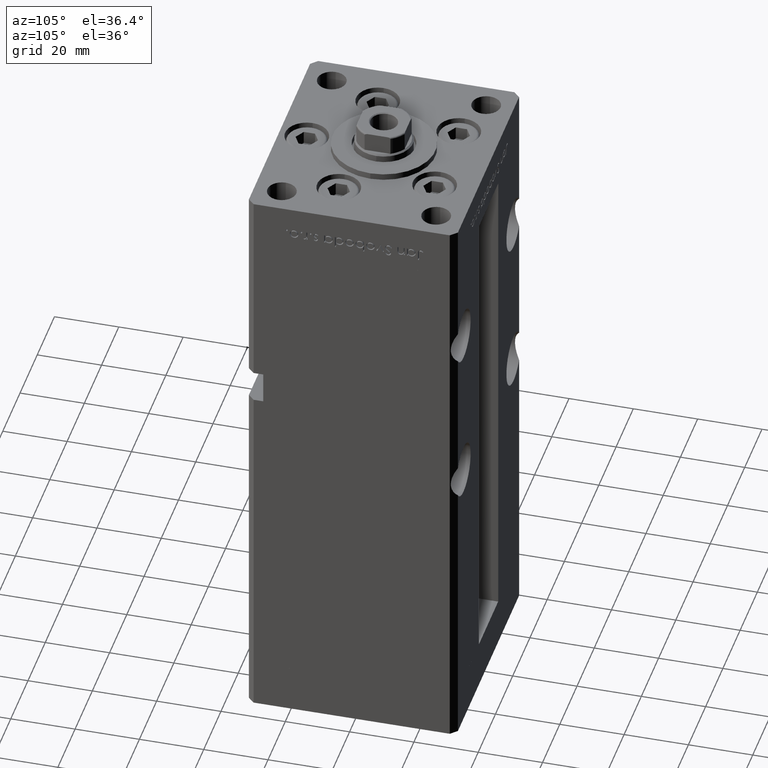
[diagram: clean part render]
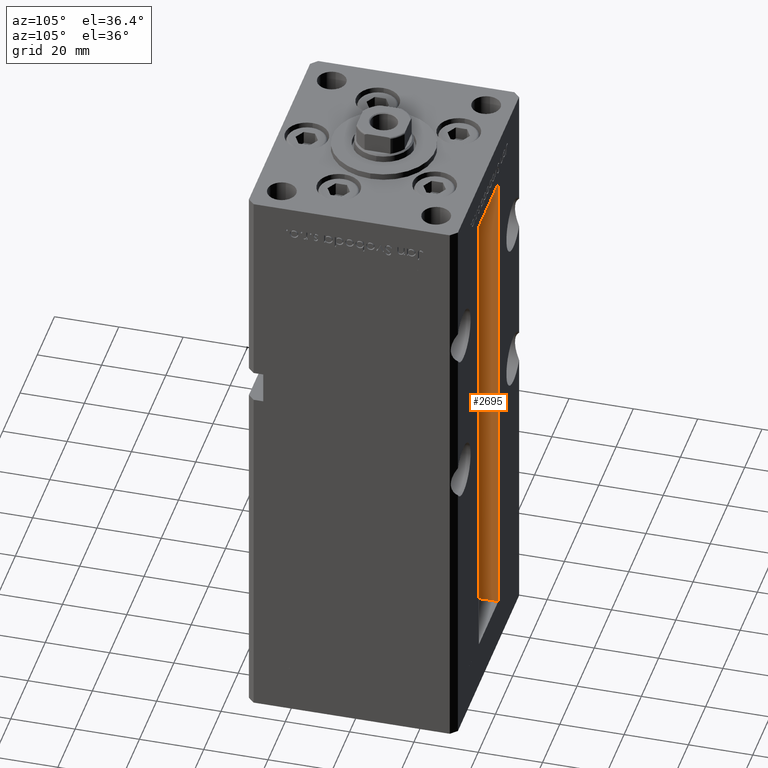
[diagram: same view with one face highlighted and labeled with its STEP entity id]
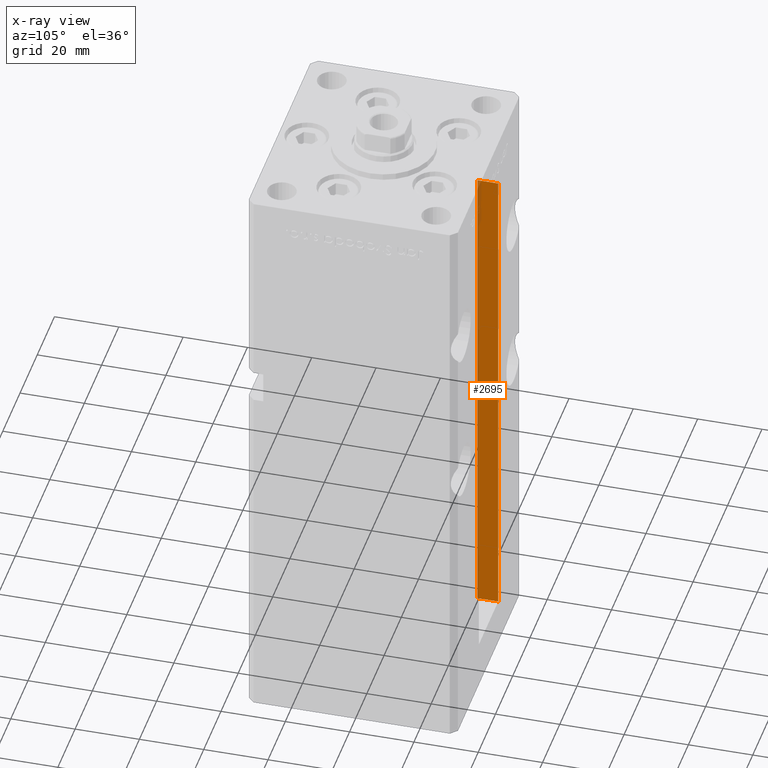
[diagram: x-ray of the same camera — body ghosted, the highlighted face saturated]
A machine part, auxiliary view. The second image highlights one B-rep face of the part: STEP entity #2695.
The next image is the same camera in x-ray: the body ghosted, the highlighted face saturated — about 8% of this face is hidden behind the body in this view.
In plain terms, the highlighted planar face has unit normal (-1, 0, 0).
Its self-contained STEP definition (entity closure, byte-faithful):
#806 = LINE ( 'NONE', #11843, #41268 ) ;
#1950 = VECTOR ( 'NONE', #48060, 1000.000000000000000 ) ;
#2695 = ADVANCED_FACE ( 'NONE', ( #7770 ), #6699, .F. ) ;
#2863 = CARTESIAN_POINT ( 'NONE',  ( -11.24999999999998046, 26.00000000000000000, 0.000000000000000000 ) ) ;
#3208 = CARTESIAN_POINT ( 'NONE',  ( -11.24999999999998046, 26.00000000000000000, 0.000000000000000000 ) ) ;
#4377 = EDGE_LOOP ( 'NONE', ( #42638, #31924, #25756, #30989 ) ) ;
#5110 = VERTEX_POINT ( 'NONE', #27368 ) ;
#5536 = VERTEX_POINT ( 'NONE', #30955 ) ;
#6699 = PLANE ( 'NONE',  #44326 ) ;
#7770 = FACE_OUTER_BOUND ( 'NONE', #4377, .T. ) ;
#11843 = CARTESIAN_POINT ( 'NONE',  ( -11.24999999999998046, 32.50000000000000000, 0.000000000000000000 ) ) ;
#17754 = VERTEX_POINT ( 'NONE', #36420 ) ;
#19083 = LINE ( 'NONE', #23406, #42249 ) ;
#19355 = DIRECTION ( 'NONE',  ( -0.000000000000000000, -1.000000000000000000, -0.000000000000000000 ) ) ;
#23406 = CARTESIAN_POINT ( 'NONE',  ( -11.24999999999998046, 26.00000000000000000, 0.000000000000000000 ) ) ;
#23659 = EDGE_CURVE ( 'NONE', #41957, #5110, #806, .T. ) ;
#25756 = ORIENTED_EDGE ( 'NONE', *, *, #23659, .T. ) ;
#27368 = CARTESIAN_POINT ( 'NONE',  ( -11.24999999999998046, 32.50000000000000000, 156.0000000000000000 ) ) ;
#27433 = DIRECTION ( 'NONE',  ( 0.000000000000000000, 0.000000000000000000, 1.000000000000000000 ) ) ;
#28279 = DIRECTION ( 'NONE',  ( -0.000000000000000000, -0.000000000000000000, 1.000000000000000000 ) ) ;
#28734 = EDGE_CURVE ( 'NONE', #41957, #17754, #19083, .T. ) ;
#30955 = CARTESIAN_POINT ( 'NONE',  ( -11.24999999999998046, 26.00000000000000000, 156.0000000000000000 ) ) ;
#30989 = ORIENTED_EDGE ( 'NONE', *, *, #49066, .F. ) ;
#31750 = DIRECTION ( 'NONE',  ( -1.000000000000000000, 0.000000000000000000, 0.000000000000000000 ) ) ;
#31924 = ORIENTED_EDGE ( 'NONE', *, *, #28734, .F. ) ;
#33869 = DIRECTION ( 'NONE',  ( 0.000000000000000000, 1.000000000000000000, 0.000000000000000000 ) ) ;
#35132 = EDGE_CURVE ( 'NONE', #17754, #5536, #43761, .T. ) ;
#36420 = CARTESIAN_POINT ( 'NONE',  ( -11.24999999999998046, 26.00000000000000000, 0.000000000000000000 ) ) ;
#41268 = VECTOR ( 'NONE', #28279, 1000.000000000000000 ) ;
#41957 = VERTEX_POINT ( 'NONE', #45454 ) ;
#42249 = VECTOR ( 'NONE', #19355, 1000.000000000000000 ) ;
#42638 = ORIENTED_EDGE ( 'NONE', *, *, #35132, .F. ) ;
#43761 = LINE ( 'NONE', #2863, #1950 ) ;
#44326 = AXIS2_PLACEMENT_3D ( 'NONE', #3208, #31750, #27433 ) ;
#45454 = CARTESIAN_POINT ( 'NONE',  ( -11.24999999999998046, 32.50000000000000000, 0.000000000000000000 ) ) ;
#48060 = DIRECTION ( 'NONE',  ( -0.000000000000000000, -0.000000000000000000, 1.000000000000000000 ) ) ;
#49066 = EDGE_CURVE ( 'NONE', #5536, #5110, #50262, .T. ) ;
#49292 = VECTOR ( 'NONE', #33869, 1000.000000000000000 ) ;
#49998 = CARTESIAN_POINT ( 'NONE',  ( -11.24999999999998046, 0.000000000000000000, 156.0000000000000000 ) ) ;
#50262 = LINE ( 'NONE', #49998, #49292 ) ;